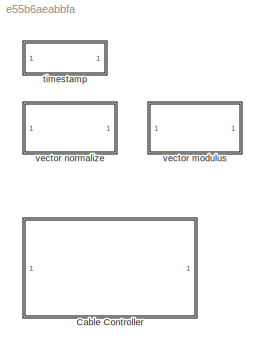
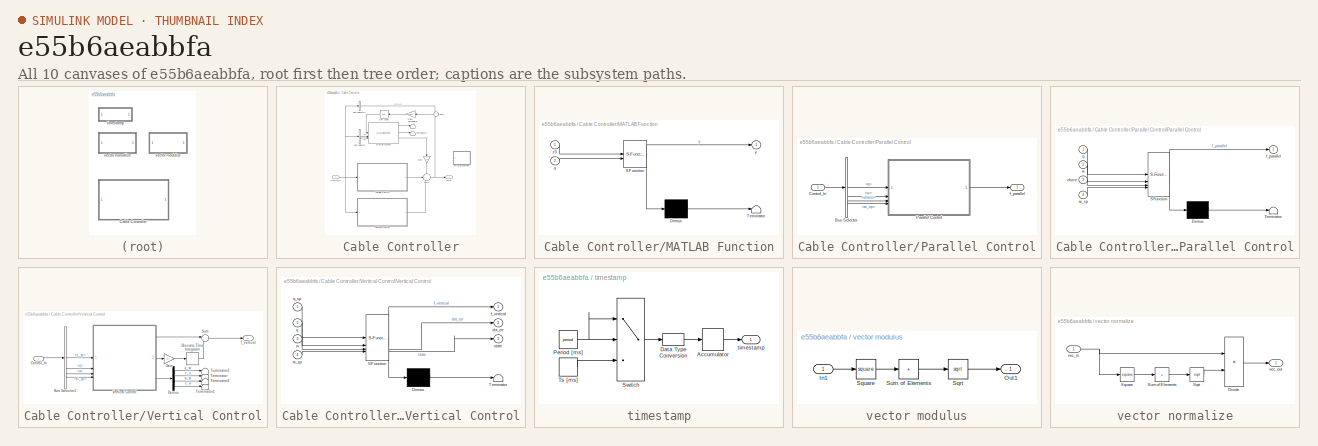
[diagram: thumbnail index - all 10 canvases of the model, root first then tree order]
MODEL slx_e55b6aeabbfa
KIND library
CONFIG AbsTol = auto
CONFIG EnableMultiTasking = off
CONFIG FixedStep = auto
CONFIG MaxStep = auto
CONFIG MinStep = auto
CONFIG RelTol = 1e-3
CONFIG SampleTimeConstraint = Unconstrained
CONFIG SolverName = VariableStepAuto
CONFIG StartTime = 0.0
CONFIG StopTime = 10.0
BLOCK [SubSystem] Cable Controller
BLOCK [BusSelector] Cable Controller/Bus Selector
  OutputSignals = pi,vi
BLOCK [BusSelector] Cable Controller/Bus Selector1
  OutputSignals = vforce
BLOCK [Inport] Cable Controller/Control_In
  OutDataTypeStr = Bus: Control_In_Bus
BLOCK [Gain] Cable Controller/Gain
  Gain = -mi
  NameLocation = left
BLOCK [Gain] Cable Controller/Gain1
  Gain = 1/mi
  NameLocation = top
BLOCK [SubSystem] Cable Controller/MATLAB Function
  Commented = on
  ErrorFcn = Stateflow.Translate.translate
  PermitHierarchicalResolution = ExplicitOnly
  SFBlockType = MATLAB Function
  TreatAsAtomicUnit = on
BLOCK [Demux] Cable Controller/MATLAB Function/ Demux 
  Outputs = 1
BLOCK [S-Function] Cable Controller/MATLAB Function/ SFunction 
  EnableBusSupport = off
  FunctionName = sf_sfun
  PortCounts = [2 2]
  SFcnIsStateOwnerBlock = off
  SFunctionDeploymentMode = off
  Tag = Stateflow S-Function 2
BLOCK [Terminator] Cable Controller/MATLAB Function/ Terminator 
BLOCK [Inport] Cable Controller/MATLAB Function/q
  Port = 2
BLOCK [Outport] Cable Controller/MATLAB Function/y
BLOCK [Inport] Cable Controller/MATLAB Function/z3
BLOCK [MATLABSystem] Cable Controller/MATLAB System
  K_p = beta_p
  K_v = beta_v
  MaskDisplay = disp('Position\n2nd Order ESO');\nport_label('input',1,'acc');\nport_label('input',2,'pos');\nport_label('input',3,'vel');\nport_label('output',1,'z1');\nport_label('output',2,'z2');\nport_label('output',3,'z3');
  MaskType = pos_2nd_eso
  SampleTime = -1
  SimulateUsing = Code generation
  System = pos_2nd_eso
BLOCK [SubSystem] Cable Controller/Parallel Control
BLOCK [BusSelector] Cable Controller/Parallel Control/Bus Selector
  OutputSignals = q,w,vforce,ai_sp
BLOCK [Inport] Cable Controller/Parallel Control/Control_In
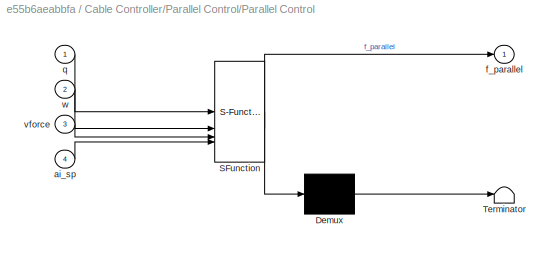
BLOCK [SubSystem] Cable Controller/Parallel Control/Parallel Control
  ErrorFcn = Stateflow.Translate.translate
  PermitHierarchicalResolution = ExplicitOnly
  SFBlockType = MATLAB Function
  TreatAsAtomicUnit = on
BLOCK [Demux] Cable Controller/Parallel Control/Parallel Control/ Demux 
  Outputs = 1
BLOCK [S-Function] Cable Controller/Parallel Control/Parallel Control/ SFunction 
  EnableBusSupport = off
  FunctionName = sf_sfun
  Parameters = li,mi
  PortCounts = [4 2]
  SFcnIsStateOwnerBlock = off
  SFunctionDeploymentMode = off
  Tag = Stateflow S-Function 5
BLOCK [Terminator] Cable Controller/Parallel Control/Parallel Control/ Terminator 
BLOCK [Inport] Cable Controller/Parallel Control/Parallel Control/ai_sp
  Port = 4
BLOCK [Outport] Cable Controller/Parallel Control/Parallel Control/f_parallel
BLOCK [Inport] Cable Controller/Parallel Control/Parallel Control/q
BLOCK [Inport] Cable Controller/Parallel Control/Parallel Control/vforce
  Port = 3
BLOCK [Inport] Cable Controller/Parallel Control/Parallel Control/w
  Port = 2
BLOCK [Outport] Cable Controller/Parallel Control/f_parallel
BLOCK [Sum] Cable Controller/Sum
  Inputs = -|+
  NameLocation = top
BLOCK [Sum] Cable Controller/Sum1
  Inputs = +++
BLOCK [Terminator] Cable Controller/Terminator
BLOCK [Terminator] Cable Controller/Terminator1
BLOCK [UnitDelay] Cable Controller/Unit Delay
  HasFrameUpgradeWarning = on
  NameLocation = top
  SampleTime = -1
BLOCK [SubSystem] Cable Controller/Vertical Control
BLOCK [BusSelector] Cable Controller/Vertical Control/Bus Selector1
  OutputSignals = q_sp,q,w,ai_sp
BLOCK [Inport] Cable Controller/Vertical Control/Control_In
BLOCK [Demux] Cable Controller/Vertical Control/Demux
BLOCK [DiscreteIntegrator] Cable Controller/Vertical Control/Discrete-Time Integrator
  ICPrevOutput = DiscIntNeverNeededParam
  ICPrevScaledInput = DiscIntNeverNeededParam
  InitialConditionSetting = Auto
  SampleTime = -1
  gainval = 1
BLOCK [Gain] Cable Controller/Vertical Control/Gain
  Gain = Ki
BLOCK [Sum] Cable Controller/Vertical Control/Sum
  Inputs = |++
BLOCK [Terminator] Cable Controller/Vertical Control/Terminator
BLOCK [Terminator] Cable Controller/Vertical Control/Terminator1
BLOCK [Terminator] Cable Controller/Vertical Control/Terminator2
BLOCK [Terminator] Cable Controller/Vertical Control/Terminator3
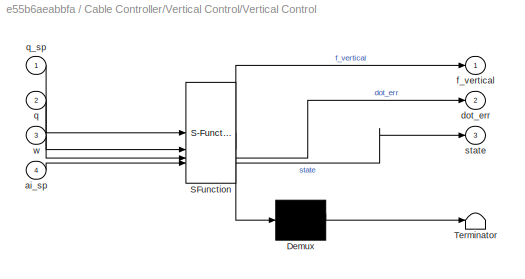
BLOCK [SubSystem] Cable Controller/Vertical Control/Vertical Control
  ErrorFcn = Stateflow.Translate.translate
  PermitHierarchicalResolution = ExplicitOnly
  SFBlockType = MATLAB Function
  TreatAsAtomicUnit = on
BLOCK [Demux] Cable Controller/Vertical Control/Vertical Control/ Demux 
  Outputs = 1
BLOCK [S-Function] Cable Controller/Vertical Control/Vertical Control/ SFunction 
  EnableBusSupport = off
  FunctionName = sf_sfun
  Parameters = Kq,Kw,li,mi
  PortCounts = [4 4]
  SFcnIsStateOwnerBlock = off
  SFunctionDeploymentMode = off
  Tag = Stateflow S-Function 6
BLOCK [Terminator] Cable Controller/Vertical Control/Vertical Control/ Terminator 
BLOCK [Inport] Cable Controller/Vertical Control/Vertical Control/ai_sp
  Port = 4
BLOCK [Outport] Cable Controller/Vertical Control/Vertical Control/dot_err
  Port = 2
BLOCK [Outport] Cable Controller/Vertical Control/Vertical Control/f_vertical
BLOCK [Inport] Cable Controller/Vertical Control/Vertical Control/q
  Port = 2
BLOCK [Inport] Cable Controller/Vertical Control/Vertical Control/q_sp
BLOCK [Outport] Cable Controller/Vertical Control/Vertical Control/state
  Port = 3
BLOCK [Inport] Cable Controller/Vertical Control/Vertical Control/w
  Port = 3
BLOCK [Outport] Cable Controller/Vertical Control/f_vertical
BLOCK [Outport] Cable Controller/force
BLOCK [SubSystem] timestamp
BLOCK [DiscreteIntegrator] timestamp/Accumulator
  ICPrevOutput = DiscIntNeverNeededParam
  ICPrevScaledInput = DiscIntNeverNeededParam
  InitialConditionSetting = Auto
  IntegratorMethod = Accumulation: Forward Euler
  SampleTime = -1
BLOCK [DataTypeConversion] timestamp/Data Type Conversion
  OutDataTypeStr = uint64
  RndMeth = Floor
  SaturateOnIntegerOverflow = off
BLOCK [Constant] timestamp/Period [ms]
  OutDataTypeStr = int32
  Value = period
BLOCK [Switch] timestamp/Switch
  Criteria = u2 > Threshold
  InputSameDT = off
  SaturateOnIntegerOverflow = off
BLOCK [SampleTimeMath] timestamp/Ts [ms]
  OutDataTypeStr = Inherit: Inherit via back propagation
  TsampMathOp = Ts Only
  weightValue = 1000
BLOCK [Outport] timestamp/timestamp
  OutDataTypeStr = uint64
  SignalType = real
  VarSizeSig = No
BLOCK [SubSystem] vector modulus
BLOCK [Inport] vector modulus/In1
BLOCK [Outport] vector modulus/Out1
BLOCK [Sqrt] vector modulus/Sqrt
BLOCK [Math] vector modulus/Square
  Operator = square
BLOCK [Sum] vector modulus/Sum of Elements
  IconShape = rectangular
  Inputs = +
BLOCK [SubSystem] vector normalize
BLOCK [Product] vector normalize/Divide
  Inputs = */
BLOCK [Sqrt] vector normalize/Sqrt
BLOCK [Math] vector normalize/Square
  Operator = square
BLOCK [Sum] vector normalize/Sum of Elements
  IconShape = rectangular
  Inputs = +
BLOCK [Inport] vector normalize/vec_in
BLOCK [Outport] vector normalize/vec_out
LINE Cable Controller/Bus Selector1:1 -> Cable Controller/Sum:1
LINE Cable Controller/Bus Selector:1 -> Cable Controller/MATLAB System:2
LINE Cable Controller/Bus Selector:2 -> Cable Controller/MATLAB System:3
NET Cable Controller/Control_In:1 -> Cable Controller/Bus Selector1:1, Cable Controller/Bus Selector:1, Cable Controller/Parallel Control:1, Cable Controller/Vertical Control:1
LINE Cable Controller/Gain1:1 -> Cable Controller/Unit Delay:1
LINE Cable Controller/Gain:1 -> Cable Controller/Sum1:1
LINE Cable Controller/MATLAB System:1 -> Cable Controller/Terminator:1
LINE Cable Controller/MATLAB System:2 -> Cable Controller/Terminator1:1
LINE Cable Controller/MATLAB System:3 -> Cable Controller/Gain:1
LINE Cable Controller/Parallel Control/Bus Selector:1 -> Cable Controller/Parallel Control/Parallel Control:1
LINE Cable Controller/Parallel Control/Bus Selector:2 -> Cable Controller/Parallel Control/Parallel Control:2
LINE Cable Controller/Parallel Control/Bus Selector:3 -> Cable Controller/Parallel Control/Parallel Control:3
LINE Cable Controller/Parallel Control/Bus Selector:4 -> Cable Controller/Parallel Control/Parallel Control:4
LINE Cable Controller/Parallel Control/Control_In:1 -> Cable Controller/Parallel Control/Bus Selector:1
LINE Cable Controller/Parallel Control/Parallel Control:1 -> Cable Controller/Parallel Control/f_parallel:1
LINE Cable Controller/Parallel Control:1 -> Cable Controller/Sum1:2
NET Cable Controller/Sum1:1 -> Cable Controller/Sum:2, Cable Controller/force:1
LINE Cable Controller/Sum:1 -> Cable Controller/Gain1:1
LINE Cable Controller/Unit Delay:1 -> Cable Controller/MATLAB System:1
LINE Cable Controller/Vertical Control/Bus Selector1:1 -> Cable Controller/Vertical Control/Vertical Control:1
LINE Cable Controller/Vertical Control/Bus Selector1:2 -> Cable Controller/Vertical Control/Vertical Control:2
LINE Cable Controller/Vertical Control/Bus Selector1:3 -> Cable Controller/Vertical Control/Vertical Control:3
LINE Cable Controller/Vertical Control/Bus Selector1:4 -> Cable Controller/Vertical Control/Vertical Control:4
LINE Cable Controller/Vertical Control/Control_In:1 -> Cable Controller/Vertical Control/Bus Selector1:1
LINE Cable Controller/Vertical Control/Demux:1 -> Cable Controller/Vertical Control/Terminator2:1
LINE Cable Controller/Vertical Control/Demux:2 -> Cable Controller/Vertical Control/Terminator:1
LINE Cable Controller/Vertical Control/Demux:3 -> Cable Controller/Vertical Control/Terminator3:1
LINE Cable Controller/Vertical Control/Demux:4 -> Cable Controller/Vertical Control/Terminator1:1
LINE Cable Controller/Vertical Control/Discrete-Time Integrator:1 -> Cable Controller/Vertical Control/Sum:2
LINE Cable Controller/Vertical Control/Gain:1 -> Cable Controller/Vertical Control/Discrete-Time Integrator:1
LINE Cable Controller/Vertical Control/Sum:1 -> Cable Controller/Vertical Control/f_vertical:1
LINE Cable Controller/Vertical Control/Vertical Control:1 -> Cable Controller/Vertical Control/Sum:1
LINE Cable Controller/Vertical Control/Vertical Control:2 -> Cable Controller/Vertical Control/Gain:1
LINE Cable Controller/Vertical Control/Vertical Control:3 -> Cable Controller/Vertical Control/Demux:1
LINE Cable Controller/Vertical Control:1 -> Cable Controller/Sum1:3
LINE timestamp/Accumulator:1 -> timestamp/timestamp:1
LINE timestamp/Data Type Conversion:1 -> timestamp/Accumulator:1
NET timestamp/Period [ms]:1 -> timestamp/Switch:1, timestamp/Switch:2
LINE timestamp/Switch:1 -> timestamp/Data Type Conversion:1
LINE timestamp/Ts [ms]:1 -> timestamp/Switch:3
LINE vector modulus/In1:1 -> vector modulus/Square:1
LINE vector modulus/Sqrt:1 -> vector modulus/Out1:1
LINE vector modulus/Square:1 -> vector modulus/Sum of Elements:1
LINE vector modulus/Sum of Elements:1 -> vector modulus/Sqrt:1
LINE vector normalize/Divide:1 -> vector normalize/vec_out:1
LINE vector normalize/Sqrt:1 -> vector normalize/Divide:2
LINE vector normalize/Square:1 -> vector normalize/Sum of Elements:1
LINE vector normalize/Sum of Elements:1 -> vector normalize/Sqrt:1
NET vector normalize/vec_in:1 -> vector normalize/Divide:1, vector normalize/Square:1
note: NET lines group one-source signal fan-out (src -> all destinations, sorted); 1:1 wires keep LINE
CHART Cable Controller/MATLAB Function states=1 transitions=1
  STATE_LABEL 'eML_blk_kernel()'
  STATE_LABEL 'SCRIPT:\nfunction y = fcn(z3, q)\n\ny = -cross(q, cross(q, z3));\n'
CHART Cable Controller/Parallel Control/Parallel Control states=1 transitions=1
  STATE_LABEL 'eML_blk_kernel()'
  STATE_LABEL "SCRIPT:\nfunction f_parallel  = fcn(q, w, vforce, ai_sp, mi, li)\n\nf_parallel = q * q' * vforce + mi * li * (norm(w) ^ 2) * q + mi * q * q' * ai_sp;"
CHART Cable Controller/Vertical Control/Vertical Control states=1 transitions=1
  STATE_LABEL 'eML_blk_kernel()'
  STATE_LABEL "SCRIPT:\nfunction [f_vertical, dot_err, state] = fcn(q_sp, q, w, ai_sp, mi, li, Kq, Kw)\n%% control law\nSqi = [0 -q(3) q(2); q(3) 0 -q(1); -q(2) q(1) 0];\ne_q = cross(q_sp, q);\n\n% w_sp = zeros(3, 1);\nw_sp = -Kq * e_q;\n% e_q = 0*e_q;\n\ne_w = w + Sqi * Sqi * w_sp;\ndot_q_sp = cross(w_sp, q_sp);\nf_vertical = mi * li * Sqi * (-Kq * e_q -Kw * e_w - Sqi * Sqi * w_sp - (q' * w_sp) * dot_q_sp) - mi * Sqi * Sqi...<+101ch>"
CHART  states=0 transitions=0
CHART  states=0 transitions=0
CHART  states=0 transitions=0
